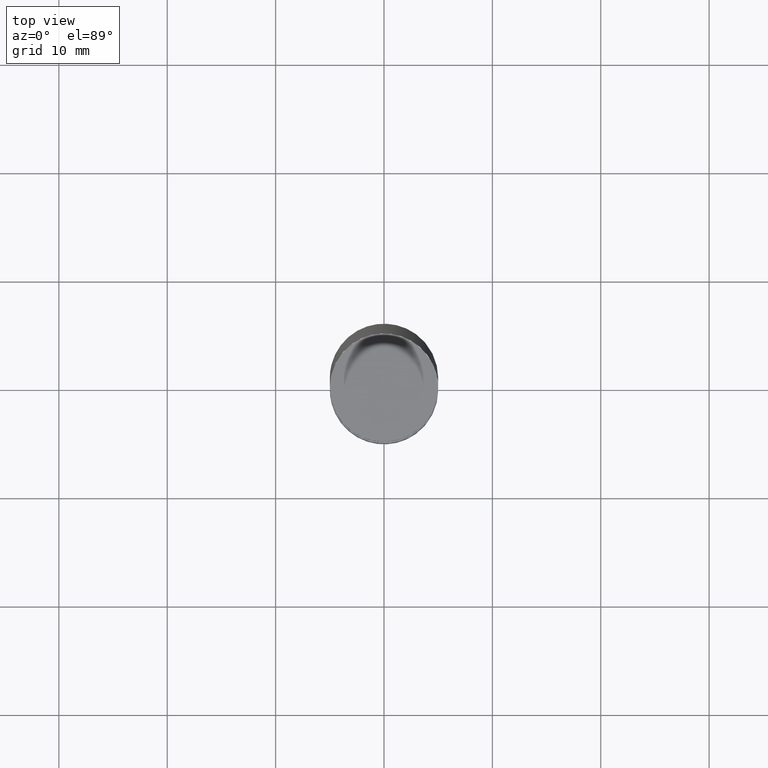
[diagram: clean part render]
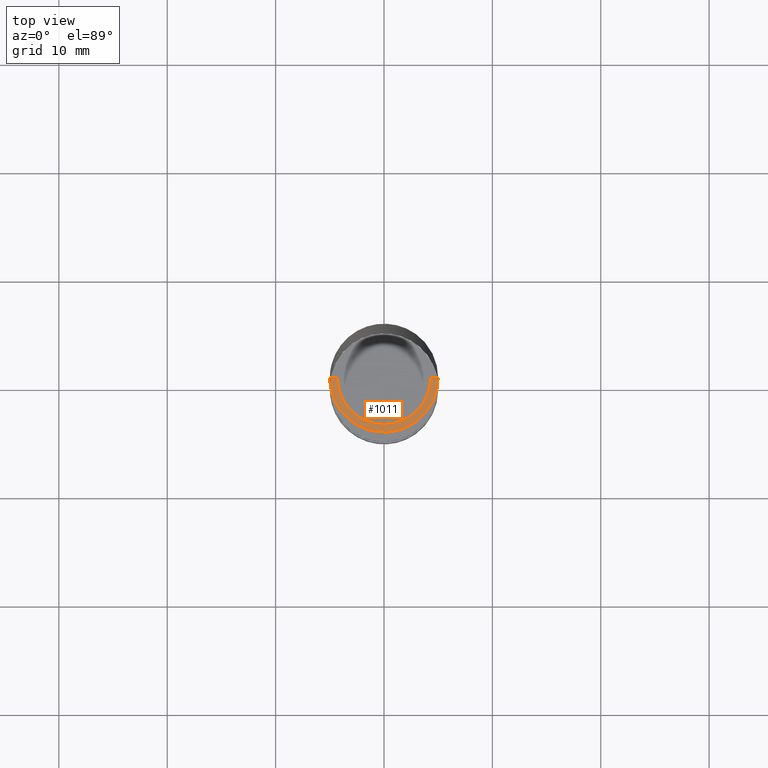
[diagram: same view with one face highlighted and labeled with its STEP entity id]
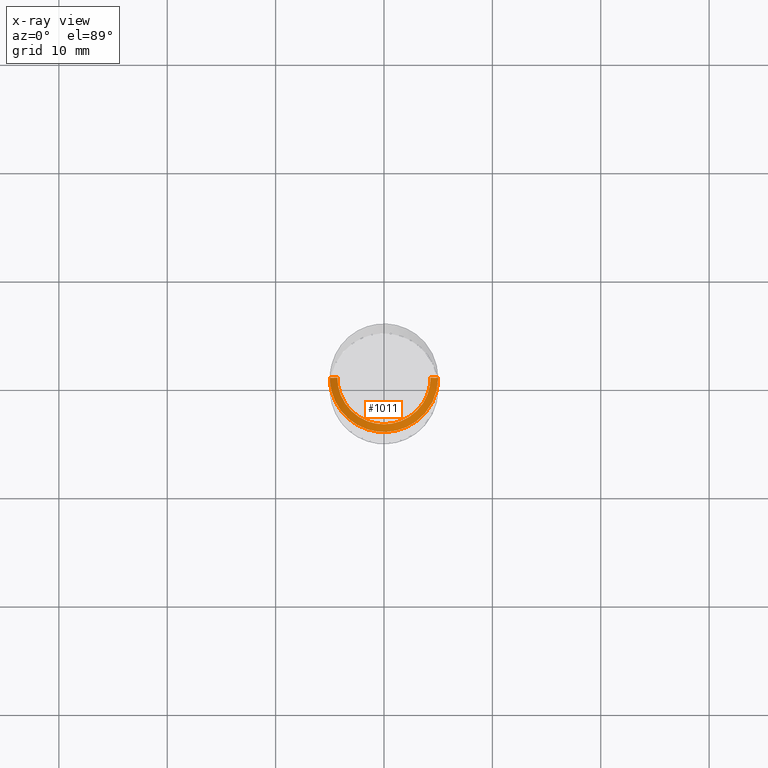
[diagram: x-ray of the same camera — body ghosted, the highlighted face saturated]
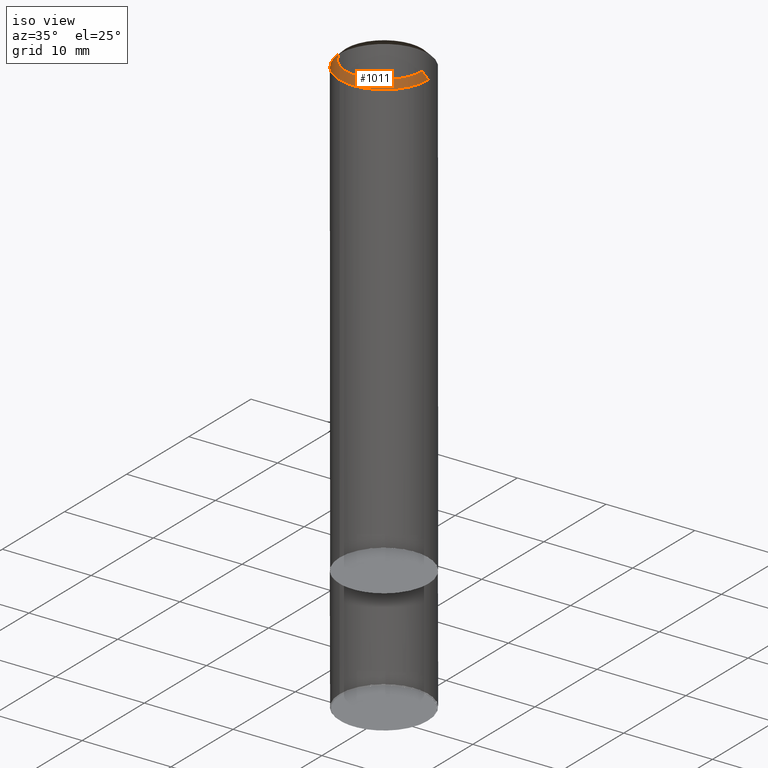
[diagram: same view with one face highlighted and labeled with its STEP entity id]
A machine part, top view. The second image highlights one B-rep face of the part: STEP entity #1011.
The next image is the same camera in x-ray: the body ghosted, the highlighted face saturated — about 0% of this face is hidden behind the body in this view.
A second angle (iso view) of the same face is appended — the face is thin or edge-on in the first view.
In plain terms, the highlighted face is a freeform B-spline surface patch.
Its self-contained STEP definition (entity closure, byte-faithful):
#670=CARTESIAN_POINT('',(5.0,0.0,51.299));
#674=CARTESIAN_POINT('',(-5.0,0.0,51.299));
#675=CARTESIAN_POINT('',(4.3,0.0,51.999));
#679=CARTESIAN_POINT('',(-4.3,0.0,51.999));
#684=CARTESIAN_POINT('',(-5.0,-5.0,51.299));
#685=CARTESIAN_POINT('',(0.0,-5.0,51.299));
#686=CARTESIAN_POINT('',(5.0,-5.0,51.299));
#687=CARTESIAN_POINT('',(-4.3,-4.3,51.999));
#688=CARTESIAN_POINT('',(0.0,-4.3,51.999));
#689=CARTESIAN_POINT('',(4.3,-4.3,51.999));
#992=(
BOUNDED_SURFACE()
B_SPLINE_SURFACE(1,2,(
(#674,#684,#685,#686,#670),
(#679,#687,#688,#689,#675)
), .UNSPECIFIED.,.F.,.F.,.F.)
B_SPLINE_SURFACE_WITH_KNOTS((2,2),(3,2,3),(
0.0,1.0),(
0.0,0.5,1.0), .UNSPECIFIED.)
GEOMETRIC_REPRESENTATION_ITEM()
RATIONAL_B_SPLINE_SURFACE(((1.0,0.707106781187,1.0,0.707106781187,1.0),
(1.0,0.707106781187,1.0,0.707106781187,1.0)
))
REPRESENTATION_ITEM('')
SURFACE()
);
#993=(
BOUNDED_CURVE()
B_SPLINE_CURVE(2,(#679,#687,#688,#689,#675),.UNSPECIFIED.,.F.,.F.)
B_SPLINE_CURVE_WITH_KNOTS((3,2,3),
(0.0,0.5,1.0),.UNSPECIFIED.)
CURVE()
GEOMETRIC_REPRESENTATION_ITEM()
RATIONAL_B_SPLINE_CURVE((1.0,0.707106781187,1.0,0.707106781187,1.0))
REPRESENTATION_ITEM('')
);
#994=(
BOUNDED_CURVE()
B_SPLINE_CURVE(1,(#675,#670),.UNSPECIFIED.,.F.,.F.)
B_SPLINE_CURVE_WITH_KNOTS((2,2),
(0.0,1.0),.UNSPECIFIED.)
CURVE()
GEOMETRIC_REPRESENTATION_ITEM()
RATIONAL_B_SPLINE_CURVE((1.0,1.0))
REPRESENTATION_ITEM('')
);
#995=(
BOUNDED_CURVE()
B_SPLINE_CURVE(2,(#670,#686,#685,#684,#674),.UNSPECIFIED.,.F.,.F.)
B_SPLINE_CURVE_WITH_KNOTS((3,2,3),
(0.0,0.5,1.0),.UNSPECIFIED.)
CURVE()
GEOMETRIC_REPRESENTATION_ITEM()
RATIONAL_B_SPLINE_CURVE((1.0,0.707106781187,1.0,0.707106781187,1.0))
REPRESENTATION_ITEM('')
);
#996=(
BOUNDED_CURVE()
B_SPLINE_CURVE(1,(#674,#679),.UNSPECIFIED.,.F.,.F.)
B_SPLINE_CURVE_WITH_KNOTS((2,2),
(0.0,1.0),.UNSPECIFIED.)
CURVE()
GEOMETRIC_REPRESENTATION_ITEM()
RATIONAL_B_SPLINE_CURVE((1.0,1.0))
REPRESENTATION_ITEM('')
);
#997=VERTEX_POINT('',#670);
#998=VERTEX_POINT('',#674);
#999=VERTEX_POINT('',#675);
#1000=VERTEX_POINT('',#679);
#1001=EDGE_CURVE('',#1000,#999,#993,.T.);
#1002=EDGE_CURVE('',#999,#997,#994,.T.);
#1003=EDGE_CURVE('',#997,#998,#995,.T.);
#1004=EDGE_CURVE('',#998,#1000,#996,.T.);
#1005=ORIENTED_EDGE('',*,*,#1001,.T.);
#1006=ORIENTED_EDGE('',*,*,#1002,.T.);
#1007=ORIENTED_EDGE('',*,*,#1003,.T.);
#1008=ORIENTED_EDGE('',*,*,#1004,.T.);
#1009=EDGE_LOOP('',(#1005,#1006,#1007,#1008));
#1010=FACE_OUTER_BOUND('',#1009,.T.);
#1011=ADVANCED_FACE('',(#1010),#992,.T.);